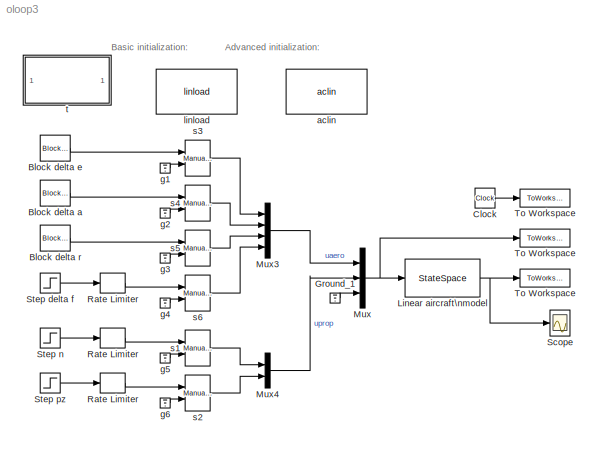
MODEL oloop3
KIND model
BLOCK [RateLimiter]  Rate Limiter
  FallingSlewLimit = -1.0
  RisingSlewLimit = 1.0
  SID = 1
BLOCK [ToWorkspace]  To Workspace  
  Ports = [1]
  SID = 2
  VariableName = yin
BLOCK [Reference] Block delta a  REF=fdctools/Block Fcn
  Ports = [0, 1]
  SID = 3
  SourceBlock = fdctools/Block Fcn
  SourceType = Block Fcn
  tstart = 0.001
  tstop = 2
  yblock = 3*pi/180
  yinit = 0
BLOCK [Reference] Block delta e  REF=fdctools/Block Fcn
  Ports = [0, 1]
  SID = 4
  SourceBlock = fdctools/Block Fcn
  SourceType = Block Fcn
  tstart = 0.001
  tstop = 2
  yblock = 3*pi/180
  yinit = 0
BLOCK [Reference] Block delta r  REF=fdctools/Block Fcn
  Ports = [0, 1]
  SID = 5
  SourceBlock = fdctools/Block Fcn
  SourceType = Block Fcn
  tstart = 0.001
  tstop = 2
  yblock = 3*pi/180
  yinit = 0
BLOCK [Clock] Clock
  SID = 6
BLOCK [Ground] Ground_1
  SID = 7
BLOCK [StateSpace] Linear aircraft\nmodel
  A = Aac
  B = Bac
  C = Cac
  D = Dac
  InitialCondition = 0
  Ports = [1, 1]
  SID = 8
BLOCK [Mux] Mux
  Inputs = [4 2 6]
  Ports = [3, 1]
  SID = 9
BLOCK [Mux] Mux3
  Ports = [4, 1]
  SID = 10
BLOCK [Mux] Mux4
  Inputs = 2
  Ports = [2, 1]
  SID = 11
BLOCK [RateLimiter] Rate Limiter
  FallingSlewLimit = -pi/180
  RisingSlewLimit = pi/180
  SID = 12
BLOCK [RateLimiter] Rate Limiter 
  FallingSlewLimit = -50
  RisingSlewLimit = 50
  SID = 13
BLOCK [Scope] Scope
  Floating = off
  NumInputPorts = 1
  Ports = [1]
  SID = 14
  ScopeSpecificationString = Simulink.scopes.TimeScopeBlockCfg('CurrentConfiguration', extmgr.ConfigurationSet(extmgr.Configuration('Core','General UI',true),extmgr.Configuration('Core','Source UI',true),extmgr.Configuration('Sources','WiredSimulink',true,'DataLoggingLimitDataPoints',true,'DataLoggingDecimation','1','DataLoggingDecimateData',true,'DataLoggingSaveFormat','Array'),extmgr.Configuration('Visuals','Time Domain',tr...<+1666ch>
BLOCK [Step] Step delta f
  After = 3*pi/180
  SID = 15
  SampleTime = 0
  Time = 0.001
BLOCK [Step] Step n
  After = 200
  SID = 16
  SampleTime = 0
  Time = 0.001
BLOCK [Step] Step pz
  After = 2
  SID = 17
  SampleTime = 0
  Time = 0.001
BLOCK [ToWorkspace] To Workspace
  Ports = [1]
  SID = 18
  VariableName = t
BLOCK [ToWorkspace] To Workspace 
  Ports = [1]
  SID = 19
  VariableName = yout
BLOCK [Reference] aclin  REF=fbuttons/aclin
  Ports = []
  SID = 20
  SourceBlock = fbuttons/aclin
  SourceType = aclin
BLOCK [Ground] g1
  SID = 21
BLOCK [Ground] g2
  SID = 22
BLOCK [Ground] g3
  SID = 23
BLOCK [Ground] g4
  SID = 24
BLOCK [Ground] g5
  SID = 25
BLOCK [Ground] g6
  SID = 26
BLOCK [Reference] linload  REF=fbuttons/linload
  Ports = []
  SID = 27
  SourceBlock = fbuttons/linload
  SourceType = linload
BLOCK [Reference] s1  REF=simulink3/Nonlinear/Manual Switch
  Ports = [2, 1]
  SID = 28
  SourceBlock = simulink3/Nonlinear/Manual Switch
  SourceProductBaseCode = SL
  SourceProductName = Simulink
  SourceType = Manual Switch
  action = 0
  sw = 0
BLOCK [Reference] s2  REF=simulink3/Nonlinear/Manual Switch
  Ports = [2, 1]
  SID = 29
  SourceBlock = simulink3/Nonlinear/Manual Switch
  SourceProductBaseCode = SL
  SourceProductName = Simulink
  SourceType = Manual Switch
  action = 0
  sw = 0
BLOCK [Reference] s3  REF=simulink3/Nonlinear/Manual Switch
  Ports = [2, 1]
  SID = 30
  SourceBlock = simulink3/Nonlinear/Manual Switch
  SourceProductBaseCode = SL
  SourceProductName = Simulink
  SourceType = Manual Switch
  action = 0
  sw = 1
BLOCK [Reference] s4  REF=simulink3/Nonlinear/Manual Switch
  Ports = [2, 1]
  SID = 31
  SourceBlock = simulink3/Nonlinear/Manual Switch
  SourceProductBaseCode = SL
  SourceProductName = Simulink
  SourceType = Manual Switch
  action = 0
  sw = 0
BLOCK [Reference] s5  REF=simulink3/Nonlinear/Manual Switch
  Ports = [2, 1]
  SID = 32
  SourceBlock = simulink3/Nonlinear/Manual Switch
  SourceProductBaseCode = SL
  SourceProductName = Simulink
  SourceType = Manual Switch
  action = 0
  sw = 0
BLOCK [Reference] s6  REF=simulink3/Nonlinear/Manual Switch
  Ports = [2, 1]
  SID = 33
  SourceBlock = simulink3/Nonlinear/Manual Switch
  SourceProductBaseCode = SL
  SourceProductName = Simulink
  SourceType = Manual Switch
  action = 0
  sw = 0
BLOCK [SubSystem] t
  OpenFcn = browse oloop
  Ports = []
  RequestExecContextInheritance = off
  SID = 34
  ShowPortLabels = none
ANNOTATION (root): Advanced initialization:
ANNOTATION (root): Basic initialization:
LINE  Rate Limiter:1 -> s2:1
LINE Block delta a:1 -> s4:1
LINE Block delta e:1 -> s3:1
LINE Block delta r:1 -> s5:1
LINE Clock:1 -> To Workspace:1
LINE Ground_1:1 -> Mux:3
NET Linear aircraft\nmodel:1 -> Scope:1, To Workspace :1
LINE Mux3:1 -> Mux:1
LINE Mux4:1 -> Mux:2
NET Mux:1 ->  To Workspace  :1, Linear aircraft\nmodel:1
LINE Rate Limiter :1 -> s1:1
LINE Rate Limiter:1 -> s6:1
LINE Step delta f:1 -> Rate Limiter:1
LINE Step n:1 -> Rate Limiter :1
LINE Step pz:1 ->  Rate Limiter:1
LINE g1:1 -> s3:2
LINE g2:1 -> s4:2
LINE g3:1 -> s5:2
LINE g4:1 -> s6:2
LINE g5:1 -> s1:2
LINE g6:1 -> s2:2
LINE s1:1 -> Mux4:1
LINE s2:1 -> Mux4:2
LINE s3:1 -> Mux3:1
LINE s4:1 -> Mux3:2
LINE s5:1 -> Mux3:3
LINE s6:1 -> Mux3:4
note: NET lines group one-source signal fan-out (src -> all destinations, sorted); 1:1 wires keep LINE
